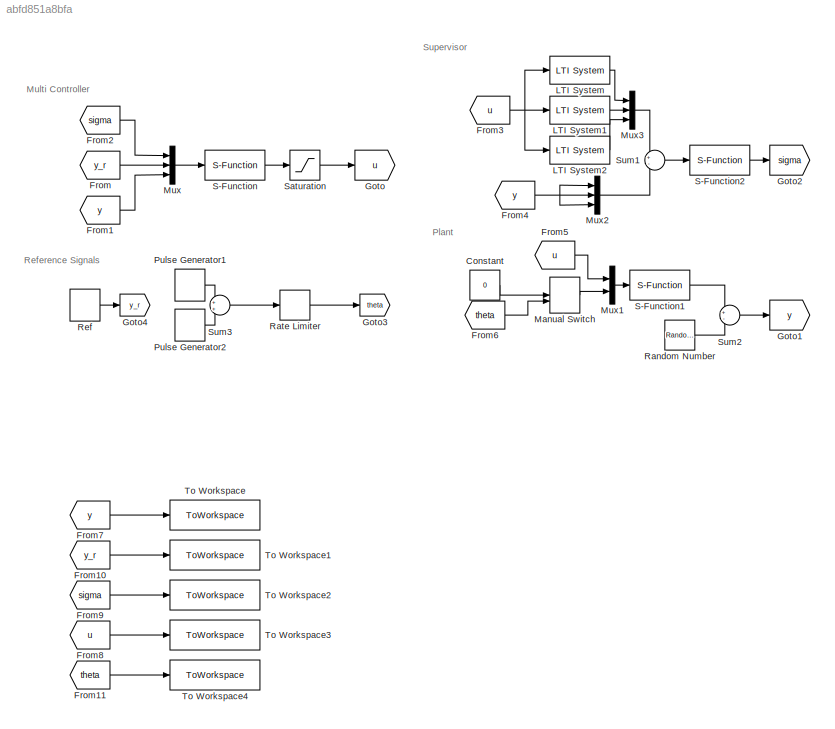
MODEL slx_abfd851a8bfa
KIND model
CONFIG AbsTol = auto
CONFIG EnableMultiTasking = off
CONFIG FixedStep = auto
CONFIG MaxStep = auto
CONFIG MinStep = auto
CONFIG RelTol = 1e-3
CONFIG SampleTimeConstraint = Unconstrained
CONFIG Solver = VariableStepAuto
CONFIG SolverName = VariableStepAuto
CONFIG StartTime = 0.0
CONFIG StopTime = 500
BLOCK [Constant] Constant
  Value = 0
BLOCK [From] From
  GotoTag = y_r
  TagVisibility = global
BLOCK [From] From1
  GotoTag = y
BLOCK [From] From10
  GotoTag = y_r
  TagVisibility = global
BLOCK [From] From11
  GotoTag = theta
  TagVisibility = global
BLOCK [From] From2
  GotoTag = sigma
BLOCK [From] From3
  GotoTag = u
BLOCK [From] From4
  GotoTag = y
BLOCK [From] From5
  GotoTag = u
  IconDisplay = Signal name
BLOCK [From] From6
  GotoTag = theta
  TagVisibility = global
BLOCK [From] From7
  GotoTag = y
BLOCK [From] From8
  GotoTag = u
BLOCK [From] From9
  GotoTag = sigma
BLOCK [Goto] Goto
  GotoTag = u
BLOCK [Goto] Goto1
  GotoTag = y
BLOCK [Goto] Goto2
  GotoTag = sigma
BLOCK [Goto] Goto3
  GotoTag = theta
  TagVisibility = global
BLOCK [Goto] Goto4
  GotoTag = y_r
  TagVisibility = global
BLOCK [Reference] LTI System  REF=cstblocks/LTI System
  Ports = [1, 1]
  SourceBlock = cstblocks/LTI System
  SourceProductBaseCode = CT
  SourceProductName = Control System Toolbox
  SourceType = LTI Block
BLOCK [Reference] LTI System1  REF=cstblocks/LTI System
  Ports = [1, 1]
  SourceBlock = cstblocks/LTI System
  SourceProductBaseCode = CT
  SourceProductName = Control System Toolbox
  SourceType = LTI Block
BLOCK [Reference] LTI System2  REF=cstblocks/LTI System
  Ports = [1, 1]
  SourceBlock = cstblocks/LTI System
  SourceProductBaseCode = CT
  SourceProductName = Control System Toolbox
  SourceType = LTI Block
BLOCK [ManualSwitch] Manual Switch
  CurrentSetting = 0
BLOCK [Mux] Mux
  DisplayOption = bar
  Inputs = 3
  Ports = [3, 1]
BLOCK [Mux] Mux1
  DisplayOption = bar
  Inputs = 2
  Ports = [2, 1]
BLOCK [Mux] Mux2
  DisplayOption = bar
  Inputs = 3
  Ports = [3, 1]
BLOCK [Mux] Mux3
  DisplayOption = bar
  Inputs = 3
  Ports = [3, 1]
BLOCK [DiscretePulseGenerator] Pulse Generator1
  Period = 200
  Ports = [0, 1]
  PulseType = Time based
  PulseWidth = 50
BLOCK [DiscretePulseGenerator] Pulse Generator2
  Amplitude = -1
  Period = 200
  PhaseDelay = 50
  Ports = [0, 1]
  PulseType = Time based
  PulseWidth = 50
BLOCK [RandomNumber] Random Number
  SampleTime = Ts
  Variance = 0.00001
BLOCK [RateLimiter] Rate Limiter
  FallingSlewLimit = -0.05
  RisingSlewLimit = 0.05
  SampleTimeMode = inherited
BLOCK [DiscretePulseGenerator] Ref
  Amplitude = 0.5
  Period = 10
  Ports = [0, 1]
  PulseType = Time based
  PulseWidth = 50
BLOCK [S-Function] S-Function
  EnableBusSupport = off
  FunctionName = RST_switch
  Parameters = N1,D1,N2,D2,N3,D3,Ts
  Ports = [1, 1]
  SFcnIsStateOwnerBlock = off
  SFunctionDeploymentMode = off
BLOCK [S-Function] S-Function1
  EnableBusSupport = off
  FunctionName = LPV_Plant
  Parameters = A1,B1,A2,B2,A3,B3,Ts
  Ports = [1, 1]
  SFcnIsStateOwnerBlock = off
  SFunctionDeploymentMode = off
BLOCK [S-Function] S-Function2
  EnableBusSupport = off
  FunctionName = Switch_sigma
  Parameters = alpha, lambda, DT, Ts
  Ports = [1, 1]
  SFcnIsStateOwnerBlock = off
  SFunctionDeploymentMode = off
BLOCK [Saturate] Saturation
  InputPortMap = u0
  LowerLimit = -5
  Ports = [1, 1]
  UpperLimit = 5
BLOCK [Sum] Sum1
  IconShape = round
  InputSameDT = off
  Inputs = +-
  OutDataTypeStr = Inherit: Inherit via internal rule
  Ports = [2, 1]
  SaturateOnIntegerOverflow = off
BLOCK [Sum] Sum2
  IconShape = round
  InputSameDT = off
  Inputs = +-
  OutDataTypeStr = Inherit: Inherit via internal rule
  Ports = [2, 1]
  SaturateOnIntegerOverflow = off
BLOCK [Sum] Sum3
  IconShape = round
  InputSameDT = off
  OutDataTypeStr = Inherit: Inherit via internal rule
  Ports = [2, 1]
  SaturateOnIntegerOverflow = off
BLOCK [ToWorkspace] To Workspace
  FixptAsFi = on
  MaxDataPoints = inf
  Ports = [1]
  SampleTime = -1
  SaveFormat = Timeseries
  VariableName = y
BLOCK [ToWorkspace] To Workspace1
  FixptAsFi = on
  MaxDataPoints = inf
  Ports = [1]
  SampleTime = -1
  SaveFormat = Timeseries
  VariableName = y_r
BLOCK [ToWorkspace] To Workspace2
  FixptAsFi = on
  MaxDataPoints = inf
  Ports = [1]
  SampleTime = -1
  SaveFormat = Timeseries
  VariableName = sigma
BLOCK [ToWorkspace] To Workspace3
  FixptAsFi = on
  MaxDataPoints = inf
  Ports = [1]
  SampleTime = -1
  Save2DSignal = 2-D array (concatenate along first dimension)
  SaveFormat = Timeseries
  VariableName = u
BLOCK [ToWorkspace] To Workspace4
  FixptAsFi = on
  MaxDataPoints = inf
  Ports = [1]
  SampleTime = -1
  Save2DSignal = 2-D array (concatenate along first dimension)
  SaveFormat = Timeseries
  VariableName = theta
ANNOTATION (root): Multi Controller
ANNOTATION (root): Plant
ANNOTATION (root): Reference Signals
ANNOTATION (root): Supervisor
LINE Constant:1 -> Manual Switch:1
LINE From10:1 -> To Workspace1:1
LINE From11:1 -> To Workspace4:1
LINE From1:1 -> Mux:3
LINE From2:1 -> Mux:1
NET From3:1 -> LTI System1:1, LTI System2:1, LTI System:1
NET From4:1 -> Mux2:1, Mux2:2, Mux2:3
LINE From5:1 -> Mux1:1
LINE From6:1 -> Manual Switch:2
LINE From7:1 -> To Workspace:1
LINE From8:1 -> To Workspace3:1
LINE From9:1 -> To Workspace2:1
LINE From:1 -> Mux:2
LINE LTI System1:1 -> Mux3:2
LINE LTI System2:1 -> Mux3:3
LINE LTI System:1 -> Mux3:1
LINE Manual Switch:1 -> Mux1:2
LINE Mux1:1 -> S-Function1:1
LINE Mux2:1 -> Sum1:2
LINE Mux3:1 -> Sum1:1
LINE Mux:1 -> S-Function:1
LINE Pulse Generator1:1 -> Sum3:1
LINE Pulse Generator2:1 -> Sum3:2
LINE Random Number:1 -> Sum2:2
LINE Rate Limiter:1 -> Goto3:1
LINE Ref:1 -> Goto4:1
LINE S-Function1:1 -> Sum2:1
LINE S-Function2:1 -> Goto2:1
LINE S-Function:1 -> Saturation:1
LINE Saturation:1 -> Goto:1
LINE Sum1:1 -> S-Function2:1
LINE Sum2:1 -> Goto1:1
LINE Sum3:1 -> Rate Limiter:1
note: NET lines group one-source signal fan-out (src -> all destinations, sorted); 1:1 wires keep LINE
